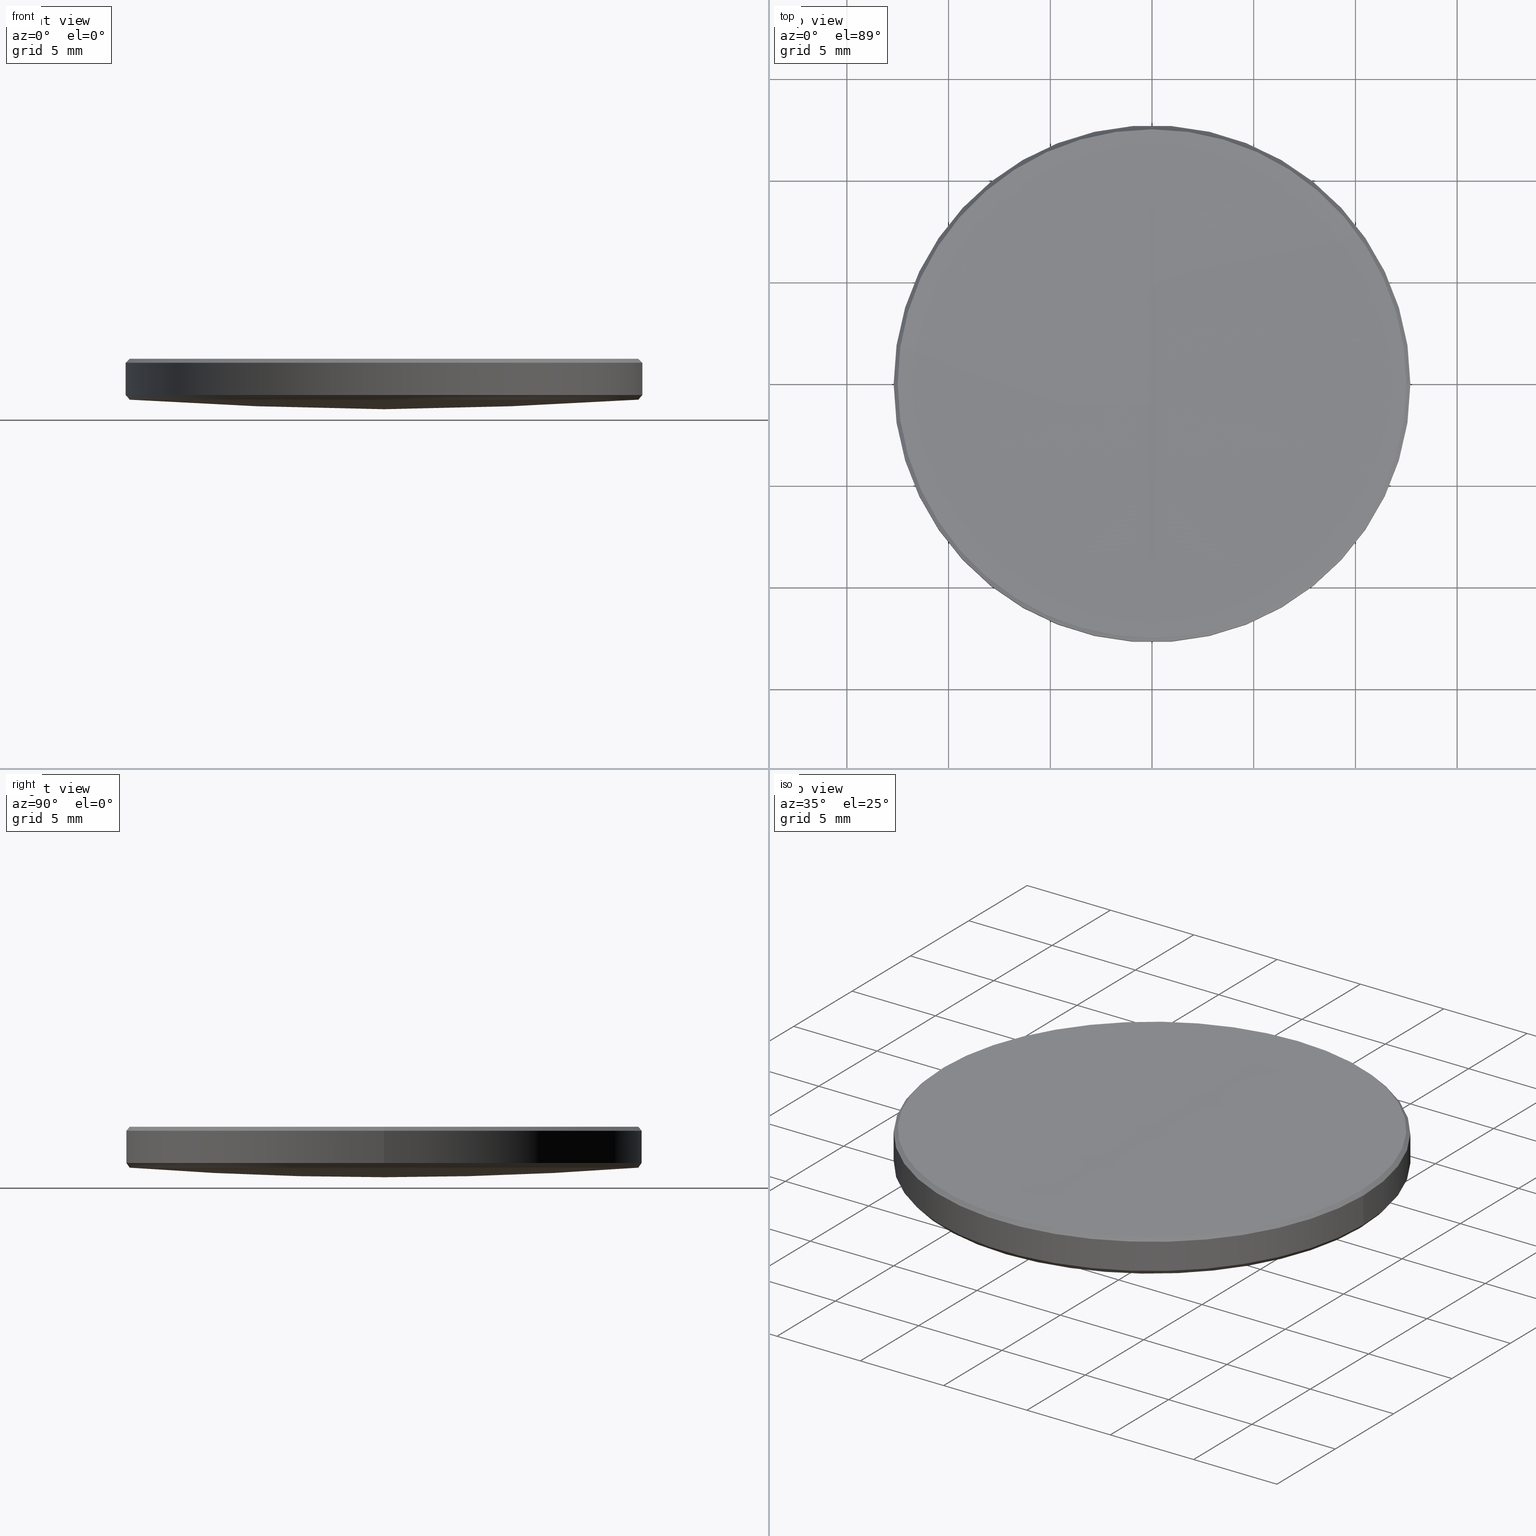
[diagram: canonical four-view strip — front | top / right | iso, engineering-drawing reading convention]
A machine part, canonical four-view strip (front | top / right | iso — engineering-drawing reading convention). The complete STEP part file that produces these views, byte-faithful:
ISO-10303-21;
HEADER;
FILE_DESCRIPTION (( 'STEP AP214' ),
    '1' );
FILE_NAME ('GLM2-025B-500.STEP',
    '2024-08-09T02:47:14',
    ( 'Windows User' ),
    ( 'P R C' ),
    'SwSTEP 2.0',
    'SolidWorks 2022',
    '' );
FILE_SCHEMA (( 'AUTOMOTIVE_DESIGN' ));
ENDSEC;

DATA;
#1 = LINE ( 'NONE', #5, #167 ) ;
#2 = DIRECTION ( 'NONE',  ( -1.000000000000000000, 1.224646799147353207E-16, 0.000000000000000000 ) ) ;
#3 = DIRECTION ( 'NONE',  ( -0.7071067811865506814, 0.000000000000000000, -0.7071067811865443531 ) ) ;
#4 = DIRECTION ( 'NONE',  ( -0.000000000000000000, -0.000000000000000000, -1.000000000000000000 ) ) ;
#5 = CARTESIAN_POINT ( 'NONE',  ( 12.69999999999999929, 0.000000000000000000, 4.217170936316433583 ) ) ;
#6 = AXIS2_PLACEMENT_3D ( 'NONE', #54, #28, #308 ) ;
#7 = ADVANCED_FACE ( 'NONE', ( #298 ), #275, .F. ) ;
#8 = CARTESIAN_POINT ( 'NONE',  ( 0.000000000000000000, 0.000000000000000000, 10.00000000000000000 ) ) ;
#9 = ADVANCED_FACE ( 'NONE', ( #180 ), #127, .T. ) ;
#10 = AXIS2_PLACEMENT_3D ( 'NONE', #274, #229, #332 ) ;
#11 =( LENGTH_UNIT ( ) NAMED_UNIT ( * ) SI_UNIT ( .MILLI., .METRE. ) );
#12 = CYLINDRICAL_SURFACE ( 'NONE', #14, 12.69999999999999929 ) ;
#13 = CIRCLE ( 'NONE', #119, 12.50409250075131062 ) ;
#14 = AXIS2_PLACEMENT_3D ( 'NONE', #8, #291, #68 ) ;
#15 = EDGE_LOOP ( 'NONE', ( #21, #20, #193, #106 ) ) ;
#16 = EDGE_CURVE ( 'NONE', #39, #75, #314, .T. ) ;
#17 = CIRCLE ( 'NONE', #238, 12.50409250075131062 ) ;
#18 = ORIENTED_EDGE ( 'NONE', *, *, #188, .F. ) ;
#19 = DIRECTION ( 'NONE',  ( 1.000000000000000000, 0.000000000000000000, 0.000000000000000000 ) ) ;
#20 = ORIENTED_EDGE ( 'NONE', *, *, #43, .T. ) ;
#21 = ORIENTED_EDGE ( 'NONE', *, *, #280, .T. ) ;
#22 = ORIENTED_EDGE ( 'NONE', *, *, #212, .T. ) ;
#23 = DIRECTION ( 'NONE',  ( -1.000000000000000000, 0.000000000000000000, 0.000000000000000000 ) ) ;
#24 = VERTEX_POINT ( 'NONE', #236 ) ;
#25 = CARTESIAN_POINT ( 'NONE',  ( 0.000000000000000000, 3.694698160687607492E-14, 5.866332001579599442 ) ) ;
#26 = CARTESIAN_POINT ( 'NONE',  ( 12.50069123197759424, 0.000000000000000000, 3.984896188597097932 ) ) ;
#27 = AXIS2_PLACEMENT_3D ( 'NONE', #169, #64, #240 ) ;
#28 = DIRECTION ( 'NONE',  ( 0.000000000000000000, 0.000000000000000000, -1.000000000000000000 ) ) ;
#29 = VECTOR ( 'NONE', #4, 1000.000000000000000 ) ;
#30 = DIRECTION ( 'NONE',  ( 1.000000000000000000, 0.000000000000000000, 0.000000000000000000 ) ) ;
#31 = CARTESIAN_POINT ( 'NONE',  ( 0.000000000000000000, 0.000000000000000000, 170.2656684345869564 ) ) ;
#32 = CARTESIAN_POINT ( 'NONE',  ( 0.000000000000000000, 0.000000000000000000, 3.984896188597097932 ) ) ;
#33 = FILL_AREA_STYLE_COLOUR ( '', #141 ) ;
#34 = CARTESIAN_POINT ( 'NONE',  ( 0.000000000000000000, 0.000000000000000000, 4.217170936316433583 ) ) ;
#35 = PRODUCT_DEFINITION_FORMATION_WITH_SPECIFIED_SOURCE ( '�κ�', '', #70, .NOT_KNOWN. ) ;
#36 = CARTESIAN_POINT ( 'NONE',  ( -12.69999999999999929, 0.000000000000000000, 4.217170936316433583 ) ) ;
#37 = EDGE_CURVE ( 'NONE', #146, #219, #208, .T. ) ;
#38 = FILL_AREA_STYLE ('',( #264 ) ) ;
#39 = VERTEX_POINT ( 'NONE', #179 ) ;
#40 = CIRCLE ( 'NONE', #155, 12.50409250075131062 ) ;
#41 =( GEOMETRIC_REPRESENTATION_CONTEXT ( 3 ) GLOBAL_UNCERTAINTY_ASSIGNED_CONTEXT ( ( #168 ) ) GLOBAL_UNIT_ASSIGNED_CONTEXT ( ( #170, #288, #165 ) ) REPRESENTATION_CONTEXT ( 'NONE', 'WORKASPACE' ) );
#42 = ORIENTED_EDGE ( 'NONE', *, *, #188, .T. ) ;
#43 = EDGE_CURVE ( 'NONE', #147, #129, #53, .T. ) ;
#44 = ORIENTED_EDGE ( 'NONE', *, *, #151, .F. ) ;
#45 = EDGE_LOOP ( 'NONE', ( #18, #48, #125, #83 ) ) ;
#46 = PRODUCT_CONTEXT ( 'NONE', #230, 'mechanical' ) ;
#47 = ORIENTED_EDGE ( 'NONE', *, *, #37, .T. ) ;
#48 = ORIENTED_EDGE ( 'NONE', *, *, #122, .T. ) ;
#49 = DIRECTION ( 'NONE',  ( 0.000000000000000000, 0.000000000000000000, -1.000000000000000000 ) ) ;
#50 = SHAPE_DEFINITION_REPRESENTATION ( #292, #65 ) ;
#51 = VERTEX_POINT ( 'NONE', #77 ) ;
#52 = CARTESIAN_POINT ( 'NONE',  ( 0.000000000000000000, 0.000000000000000000, 609.2563320015796080 ) ) ;
#53 = LINE ( 'NONE', #282, #29 ) ;
#54 = CARTESIAN_POINT ( 'NONE',  ( 0.000000000000000000, 0.000000000000000000, 5.799999999999916334 ) ) ;
#55 = CARTESIAN_POINT ( 'NONE',  ( 0.000000000000000000, 0.000000000000000000, 170.2656684345869564 ) ) ;
#56 = DIRECTION ( 'NONE',  ( 1.000000000000000000, 0.000000000000000000, 0.000000000000000000 ) ) ;
#57 = CLOSED_SHELL ( 'NONE', ( #62, #178, #105, #220, #290, #300, #313, #7, #9, #325 ) ) ;
#58 = CARTESIAN_POINT ( 'NONE',  ( 0.000000000000000000, 0.000000000000000000, 3.984896188597097932 ) ) ;
#59 = DIRECTION ( 'NONE',  ( 0.000000000000000000, 0.000000000000000000, -1.000000000000000000 ) ) ;
#60 =( NAMED_UNIT ( * ) PLANE_ANGLE_UNIT ( ) SI_UNIT ( $, .RADIAN. ) );
#61 = CONICAL_SURFACE ( 'NONE', #326, 12.69999999999999929, 0.7091624202061372895 ) ;
#62 = ADVANCED_FACE ( 'NONE', ( #254 ), #295, .T. ) ;
#63 =( GEOMETRIC_REPRESENTATION_CONTEXT ( 3 ) GLOBAL_UNCERTAINTY_ASSIGNED_CONTEXT ( ( #160 ) ) GLOBAL_UNIT_ASSIGNED_CONTEXT ( ( #11, #190, #270 ) ) REPRESENTATION_CONTEXT ( 'NONE', 'WORKASPACE' ) );
#64 = DIRECTION ( 'NONE',  ( -1.000000000000000000, 0.000000000000000000, 0.000000000000000000 ) ) ;
#65 = ADVANCED_BREP_SHAPE_REPRESENTATION ( 'GLM2-025B-500', ( #243, #174 ), #41 ) ;
#66 = FACE_OUTER_BOUND ( 'NONE', #148, .T. ) ;
#67 = AXIS2_PLACEMENT_3D ( 'NONE', #31, #207, #231 ) ;
#68 = DIRECTION ( 'NONE',  ( -1.000000000000000000, 0.000000000000000000, 0.000000000000000000 ) ) ;
#69 = VECTOR ( 'NONE', #3, 1000.000000000000114 ) ;
#70 = PRODUCT ( 'GLM2-025B-500', 'GLM2-025B-500', '', ( #46 ) ) ;
#71 = EDGE_LOOP ( 'NONE', ( #269, #319, #245, #99, #152 ) ) ;
#72 = EDGE_CURVE ( 'NONE', #219, #129, #120, .T. ) ;
#73 = AXIS2_PLACEMENT_3D ( 'NONE', #87, #49, #149 ) ;
#74 = ORIENTED_EDGE ( 'NONE', *, *, #82, .F. ) ;
#75 = VERTEX_POINT ( 'NONE', #157 ) ;
#76 = EDGE_LOOP ( 'NONE', ( #44, #246, #74, #177, #247 ) ) ;
#77 = CARTESIAN_POINT ( 'NONE',  ( 0.000000000000000000, 12.50069123197775767, 3.984896188597097932 ) ) ;
#78 = EDGE_LOOP ( 'NONE', ( #320, #196, #200, #172, #102 ) ) ;
#79 = SURFACE_SIDE_STYLE ('',( #331 ) ) ;
#80 = CARTESIAN_POINT ( 'NONE',  ( 0.000000000000000000, 0.000000000000000000, 4.217170936316433583 ) ) ;
#81 = STYLED_ITEM ( 'NONE', ( #228 ), #243 ) ;
#82 = EDGE_CURVE ( 'NONE', #98, #39, #145, .T. ) ;
#83 = ORIENTED_EDGE ( 'NONE', *, *, #108, .T. ) ;
#84 = DIRECTION ( 'NONE',  ( -1.000000000000000000, 0.000000000000000000, 0.000000000000000000 ) ) ;
#85 = DIRECTION ( 'NONE',  ( -0.000000000000000000, -0.000000000000000000, 1.000000000000000000 ) ) ;
#86 = CARTESIAN_POINT ( 'NONE',  ( 0.000000000000000000, 0.000000000000000000, 3.984896188597097932 ) ) ;
#87 = CARTESIAN_POINT ( 'NONE',  ( 0.000000000000000000, 0.000000000000000000, 5.799999999999916334 ) ) ;
#88 = FACE_OUTER_BOUND ( 'NONE', #15, .T. ) ;
#89 = AXIS2_PLACEMENT_3D ( 'NONE', #32, #258, #109 ) ;
#90 = PRESENTATION_LAYER_ASSIGNMENT (  '', '', ( #215 ) ) ;
#91 = PRESENTATION_STYLE_ASSIGNMENT (( #312 ) ) ;
#92 = DIRECTION ( 'NONE',  ( -1.000000000000000000, 0.000000000000000000, 0.000000000000000000 ) ) ;
#93 = ORIENTED_EDGE ( 'NONE', *, *, #43, .F. ) ;
#94 = PRODUCT_RELATED_PRODUCT_CATEGORY ( 'part', '', ( #70 ) ) ;
#95 = PRESENTATION_LAYER_ASSIGNMENT (  '', '', ( #81 ) ) ;
#96 = ORIENTED_EDGE ( 'NONE', *, *, #133, .T. ) ;
#97 = VECTOR ( 'NONE', #234, 1000.000000000000000 ) ;
#98 = VERTEX_POINT ( 'NONE', #26 ) ;
#99 = ORIENTED_EDGE ( 'NONE', *, *, #253, .F. ) ;
#100 = APPLICATION_PROTOCOL_DEFINITION ( 'draft international standard', 'automotive_design', 1998, #230 ) ;
#101 = CIRCLE ( 'NONE', #214, 166.7500000000000000 ) ;
#102 = ORIENTED_EDGE ( 'NONE', *, *, #133, .F. ) ;
#103 = CONICAL_SURFACE ( 'NONE', #226, 12.50409250075130529, 0.7853981633974528309 ) ;
#104 = SPHERICAL_SURFACE ( 'NONE', #10, 603.3899999999999864 ) ;
#105 = ADVANCED_FACE ( 'NONE', ( #256 ), #104, .F. ) ;
#106 = ORIENTED_EDGE ( 'NONE', *, *, #37, .F. ) ;
#107 = CARTESIAN_POINT ( 'NONE',  ( 0.000000000000000000, 0.000000000000000000, 5.995907499248387396 ) ) ;
#108 = EDGE_CURVE ( 'NONE', #75, #51, #241, .T. ) ;
#109 = DIRECTION ( 'NONE',  ( 1.000000000000000000, 0.000000000000000000, 0.000000000000000000 ) ) ;
#110 = UNCERTAINTY_MEASURE_WITH_UNIT (LENGTH_MEASURE( 1.000000000000000082E-05 ), #163, 'distance_accuracy_value', 'NONE');
#111 = CARTESIAN_POINT ( 'NONE',  ( 0.000000000000000000, 0.000000000000000000, 5.995907499248387396 ) ) ;
#112 = CARTESIAN_POINT ( 'NONE',  ( -12.69999999999999929, 1.555301434917138433E-15, 4.217170936316433583 ) ) ;
#113 = DIRECTION ( 'NONE',  ( 1.000000000000000000, 0.000000000000000000, 0.000000000000000000 ) ) ;
#114 = DIRECTION ( 'NONE',  ( -1.224646799147353207E-16, -1.000000000000000000, 0.000000000000000000 ) ) ;
#115 = CARTESIAN_POINT ( 'NONE',  ( 0.000000000000000000, 0.000000000000000000, 4.217170936316433583 ) ) ;
#116 = DIRECTION ( 'NONE',  ( 0.000000000000000000, 0.000000000000000000, -1.000000000000000000 ) ) ;
#117 = CIRCLE ( 'NONE', #6, 12.69999999999999929 ) ;
#118 = CYLINDRICAL_SURFACE ( 'NONE', #164, 12.69999999999999929 ) ;
#119 = AXIS2_PLACEMENT_3D ( 'NONE', #224, #285, #202 ) ;
#120 = CIRCLE ( 'NONE', #321, 12.69999999999999929 ) ;
#121 = FACE_OUTER_BOUND ( 'NONE', #271, .T. ) ;
#122 = EDGE_CURVE ( 'NONE', #176, #39, #101, .T. ) ;
#123 = ORIENTED_EDGE ( 'NONE', *, *, #131, .F. ) ;
#124 = CIRCLE ( 'NONE', #261, 12.50409250075131062 ) ;
#125 = ORIENTED_EDGE ( 'NONE', *, *, #16, .T. ) ;
#126 = EDGE_LOOP ( 'NONE', ( #328, #195, #265, #227, #242 ) ) ;
#127 = CONICAL_SURFACE ( 'NONE', #135, 12.69999999999999929, 0.7091624202061372895 ) ;
#128 = ORIENTED_EDGE ( 'NONE', *, *, #212, .F. ) ;
#129 = VERTEX_POINT ( 'NONE', #162 ) ;
#130 = DIRECTION ( 'NONE',  ( -0.6511983538683498995, 7.974879796749002511E-17, 0.7589075727116915138 ) ) ;
#131 = EDGE_CURVE ( 'NONE', #222, #191, #267, .T. ) ;
#132 = EDGE_LOOP ( 'NONE', ( #123, #22, #171, #296 ) ) ;
#133 = EDGE_CURVE ( 'NONE', #147, #146, #194, .T. ) ;
#134 = DIRECTION ( 'NONE',  ( -0.000000000000000000, -0.000000000000000000, 1.000000000000000000 ) ) ;
#135 = AXIS2_PLACEMENT_3D ( 'NONE', #34, #85, #232 ) ;
#136 = CARTESIAN_POINT ( 'NONE',  ( 0.000000000000000000, 0.000000000000000000, 3.984896188597097932 ) ) ;
#137 = FACE_OUTER_BOUND ( 'NONE', #71, .T. ) ;
#138 = DIRECTION ( 'NONE',  ( -1.000000000000000000, 1.224646799147353207E-16, 0.000000000000000000 ) ) ;
#139 = FILL_AREA_STYLE ('',( #33 ) ) ;
#140 = DIRECTION ( 'NONE',  ( 0.000000000000000000, 1.000000000000000000, 0.000000000000000000 ) ) ;
#141 = COLOUR_RGB ( '',1.000000000000000000, 1.000000000000000000, 1.000000000000000000 ) ;
#142 = SURFACE_STYLE_FILL_AREA ( #38 ) ;
#143 = AXIS2_PLACEMENT_3D ( 'NONE', #182, #186, #140 ) ;
#144 = ORIENTED_EDGE ( 'NONE', *, *, #244, .T. ) ;
#145 = CIRCLE ( 'NONE', #173, 12.50069123197759424 ) ;
#146 = VERTEX_POINT ( 'NONE', #307 ) ;
#147 = VERTEX_POINT ( 'NONE', #301 ) ;
#148 = EDGE_LOOP ( 'NONE', ( #93, #96, #47, #273 ) ) ;
#149 = DIRECTION ( 'NONE',  ( 1.000000000000000000, 0.000000000000000000, 0.000000000000000000 ) ) ;
#150 = AXIS2_PLACEMENT_3D ( 'NONE', #115, #211, #84 ) ;
#151 = EDGE_CURVE ( 'NONE', #75, #219, #154, .T. ) ;
#152 = ORIENTED_EDGE ( 'NONE', *, *, #217, .F. ) ;
#153 = LINE ( 'NONE', #156, #205 ) ;
#154 = LINE ( 'NONE', #112, #252 ) ;
#155 = AXIS2_PLACEMENT_3D ( 'NONE', #111, #284, #260 ) ;
#156 = CARTESIAN_POINT ( 'NONE',  ( 12.50409250075130529, 1.531309685728750775E-15, 5.995907499248609440 ) ) ;
#157 = CARTESIAN_POINT ( 'NONE',  ( -12.50069123197759424, 1.543097292677106632E-15, 3.984896188597097932 ) ) ;
#158 = DIRECTION ( 'NONE',  ( 0.000000000000000000, 0.000000000000000000, -1.000000000000000000 ) ) ;
#159 = DIRECTION ( 'NONE',  ( 0.000000000000000000, 0.000000000000000000, -1.000000000000000000 ) ) ;
#160 = UNCERTAINTY_MEASURE_WITH_UNIT (LENGTH_MEASURE( 1.000000000000000082E-05 ), #11, 'distance_accuracy_value', 'NONE');
#161 = DIRECTION ( 'NONE',  ( 1.000000000000000000, 0.000000000000000000, 0.000000000000000000 ) ) ;
#162 = CARTESIAN_POINT ( 'NONE',  ( 12.69999999999999929, 1.555301434917138433E-15, 4.217170936316433583 ) ) ;
#163 =( LENGTH_UNIT ( ) NAMED_UNIT ( * ) SI_UNIT ( .MILLI., .METRE. ) );
#164 = AXIS2_PLACEMENT_3D ( 'NONE', #189, #315, #289 ) ;
#165 =( NAMED_UNIT ( * ) SI_UNIT ( $, .STERADIAN. ) SOLID_ANGLE_UNIT ( ) );
#166 = EDGE_CURVE ( 'NONE', #198, #191, #13, .T. ) ;
#167 = VECTOR ( 'NONE', #209, 1000.000000000000000 ) ;
#168 = UNCERTAINTY_MEASURE_WITH_UNIT (LENGTH_MEASURE( 1.000000000000000082E-05 ), #170, 'distance_accuracy_value', 'NONE');
#169 = CARTESIAN_POINT ( 'NONE',  ( 0.000000000000000000, 0.000000000000000000, 170.2656684345869564 ) ) ;
#170 =( LENGTH_UNIT ( ) NAMED_UNIT ( * ) SI_UNIT ( .MILLI., .METRE. ) );
#171 = ORIENTED_EDGE ( 'NONE', *, *, #206, .T. ) ;
#172 = ORIENTED_EDGE ( 'NONE', *, *, #266, .T. ) ;
#173 = AXIS2_PLACEMENT_3D ( 'NONE', #58, #116, #30 ) ;
#174 = AXIS2_PLACEMENT_3D ( 'NONE', #272, #324, #19 ) ;
#175 = AXIS2_PLACEMENT_3D ( 'NONE', #86, #184, #210 ) ;
#176 = VERTEX_POINT ( 'NONE', #251 ) ;
#177 = ORIENTED_EDGE ( 'NONE', *, *, #253, .T. ) ;
#178 = ADVANCED_FACE ( 'NONE', ( #137 ), #61, .T. ) ;
#179 = CARTESIAN_POINT ( 'NONE',  ( -1.530893150437094356E-15, -12.50069123197775767, 3.984896188597097932 ) ) ;
#180 = FACE_OUTER_BOUND ( 'NONE', #76, .T. ) ;
#181 = PRODUCT_DEFINITION_CONTEXT ( 'detailed design', #197, 'design' ) ;
#182 = CARTESIAN_POINT ( 'NONE',  ( 0.000000000000000000, 0.000000000000000000, 609.2563320015796080 ) ) ;
#183 = CARTESIAN_POINT ( 'NONE',  ( 0.000000000000000000, 0.000000000000000000, 609.2563320015796080 ) ) ;
#184 = DIRECTION ( 'NONE',  ( 0.000000000000000000, 0.000000000000000000, -1.000000000000000000 ) ) ;
#185 = CARTESIAN_POINT ( 'NONE',  ( -12.50409250075131062, 0.000000000000000000, 5.995907499248387396 ) ) ;
#186 = DIRECTION ( 'NONE',  ( -1.000000000000000000, 0.000000000000000000, 0.000000000000000000 ) ) ;
#187 = AXIS2_PLACEMENT_3D ( 'NONE', #304, #201, #158 ) ;
#188 = EDGE_CURVE ( 'NONE', #176, #51, #310, .T. ) ;
#189 = CARTESIAN_POINT ( 'NONE',  ( 0.000000000000000000, 0.000000000000000000, 10.00000000000000000 ) ) ;
#190 =( NAMED_UNIT ( * ) PLANE_ANGLE_UNIT ( ) SI_UNIT ( $, .RADIAN. ) );
#191 = VERTEX_POINT ( 'NONE', #306 ) ;
#192 =( GEOMETRIC_REPRESENTATION_CONTEXT ( 3 ) GLOBAL_UNCERTAINTY_ASSIGNED_CONTEXT ( ( #110 ) ) GLOBAL_UNIT_ASSIGNED_CONTEXT ( ( #163, #60, #237 ) ) REPRESENTATION_CONTEXT ( 'NONE', 'WORKASPACE' ) );
#193 = ORIENTED_EDGE ( 'NONE', *, *, #279, .T. ) ;
#194 = CIRCLE ( 'NONE', #73, 12.69999999999999929 ) ;
#195 = ORIENTED_EDGE ( 'NONE', *, *, #218, .T. ) ;
#196 = ORIENTED_EDGE ( 'NONE', *, *, #263, .F. ) ;
#197 = APPLICATION_CONTEXT ( 'automotive_design' ) ;
#198 = VERTEX_POINT ( 'NONE', #185 ) ;
#199 = AXIS2_PLACEMENT_3D ( 'NONE', #52, #56, #59 ) ;
#200 = ORIENTED_EDGE ( 'NONE', *, *, #166, .F. ) ;
#201 = DIRECTION ( 'NONE',  ( 1.000000000000000000, -0.000000000000000000, 0.000000000000000000 ) ) ;
#202 = DIRECTION ( 'NONE',  ( 1.000000000000000000, 0.000000000000000000, 0.000000000000000000 ) ) ;
#203 = DIRECTION ( 'NONE',  ( -0.000000000000000000, -0.000000000000000000, 1.000000000000000000 ) ) ;
#204 = DIRECTION ( 'NONE',  ( 1.000000000000000000, 0.000000000000000000, 0.000000000000000000 ) ) ;
#205 = VECTOR ( 'NONE', #250, 1000.000000000000114 ) ;
#206 = EDGE_CURVE ( 'NONE', #293, #198, #40, .T. ) ;
#207 = DIRECTION ( 'NONE',  ( -1.000000000000000000, 0.000000000000000000, 0.000000000000000000 ) ) ;
#208 = LINE ( 'NONE', #278, #97 ) ;
#209 = DIRECTION ( 'NONE',  ( 0.6511983538683498995, 0.000000000000000000, 0.7589075727116915138 ) ) ;
#210 = DIRECTION ( 'NONE',  ( 1.000000000000000000, 0.000000000000000000, 0.000000000000000000 ) ) ;
#211 = DIRECTION ( 'NONE',  ( -0.000000000000000000, -0.000000000000000000, 1.000000000000000000 ) ) ;
#212 = EDGE_CURVE ( 'NONE', #222, #293, #225, .T. ) ;
#213 = CARTESIAN_POINT ( 'NONE',  ( 0.000000000000000000, 12.50409250074720546, 5.995907499248387396 ) ) ;
#214 = AXIS2_PLACEMENT_3D ( 'NONE', #55, #138, #305 ) ;
#215 = STYLED_ITEM ( 'NONE', ( #91 ), #65 ) ;
#216 = CARTESIAN_POINT ( 'NONE',  ( 0.000000000000000000, 0.000000000000000000, 5.995907499248609440 ) ) ;
#217 = EDGE_CURVE ( 'NONE', #51, #98, #294, .T. ) ;
#218 = EDGE_CURVE ( 'NONE', #24, #147, #153, .T. ) ;
#219 = VERTEX_POINT ( 'NONE', #36 ) ;
#220 = ADVANCED_FACE ( 'NONE', ( #255 ), #276, .T. ) ;
#221 = ORIENTED_EDGE ( 'NONE', *, *, #217, .T. ) ;
#222 = VERTEX_POINT ( 'NONE', #25 ) ;
#223 = ORIENTED_EDGE ( 'NONE', *, *, #263, .T. ) ;
#224 = CARTESIAN_POINT ( 'NONE',  ( 0.000000000000000000, 0.000000000000000000, 5.995907499248387396 ) ) ;
#225 = CIRCLE ( 'NONE', #199, 603.3899999999999864 ) ;
#226 = AXIS2_PLACEMENT_3D ( 'NONE', #216, #316, #92 ) ;
#227 = ORIENTED_EDGE ( 'NONE', *, *, #266, .F. ) ;
#228 = PRESENTATION_STYLE_ASSIGNMENT (( #286 ) ) ;
#229 = DIRECTION ( 'NONE',  ( -1.000000000000000000, 0.000000000000000000, 0.000000000000000000 ) ) ;
#230 = APPLICATION_CONTEXT ( 'automotive_design' ) ;
#231 = DIRECTION ( 'NONE',  ( 0.000000000000000000, 1.000000000000000000, 0.000000000000000000 ) ) ;
#232 = DIRECTION ( 'NONE',  ( 1.000000000000000000, 0.000000000000000000, 0.000000000000000000 ) ) ;
#233 = DIRECTION ( 'NONE',  ( 1.000000000000000000, 0.000000000000000000, 0.000000000000000000 ) ) ;
#234 = DIRECTION ( 'NONE',  ( -0.000000000000000000, -0.000000000000000000, -1.000000000000000000 ) ) ;
#235 = LINE ( 'NONE', #303, #69 ) ;
#236 = CARTESIAN_POINT ( 'NONE',  ( 12.50409250075131062, 1.543305560322944900E-15, 5.995907499248387396 ) ) ;
#237 =( NAMED_UNIT ( * ) SI_UNIT ( $, .STERADIAN. ) SOLID_ANGLE_UNIT ( ) );
#238 = AXIS2_PLACEMENT_3D ( 'NONE', #107, #203, #113 ) ;
#239 = SURFACE_SIDE_STYLE ('',( #142 ) ) ;
#240 = DIRECTION ( 'NONE',  ( 0.000000000000000000, 1.000000000000000000, 0.000000000000000000 ) ) ;
#241 = CIRCLE ( 'NONE', #89, 12.50069123197759424 ) ;
#242 = ORIENTED_EDGE ( 'NONE', *, *, #206, .F. ) ;
#243 = MANIFOLD_SOLID_BREP ( '����1', #57 ) ;
#244 = EDGE_CURVE ( 'NONE', #24, #293, #124, .T. ) ;
#245 = ORIENTED_EDGE ( 'NONE', *, *, #279, .F. ) ;
#246 = ORIENTED_EDGE ( 'NONE', *, *, #16, .F. ) ;
#247 = ORIENTED_EDGE ( 'NONE', *, *, #72, .F. ) ;
#248 = CIRCLE ( 'NONE', #150, 12.69999999999999929 ) ;
#249 = CARTESIAN_POINT ( 'NONE',  ( 0.000000000000000000, 0.000000000000000000, 5.995907499248609440 ) ) ;
#250 = DIRECTION ( 'NONE',  ( 0.7071067811865506814, 8.659560562354969836E-17, -0.7071067811865443531 ) ) ;
#251 = CARTESIAN_POINT ( 'NONE',  ( 0.000000000000000000, 1.021049268789105718E-14, 3.515668434586949331 ) ) ;
#252 = VECTOR ( 'NONE', #130, 1000.000000000000000 ) ;
#253 = EDGE_CURVE ( 'NONE', #98, #129, #1, .T. ) ;
#254 = FACE_OUTER_BOUND ( 'NONE', #126, .T. ) ;
#255 = FACE_OUTER_BOUND ( 'NONE', #45, .T. ) ;
#256 = FACE_OUTER_BOUND ( 'NONE', #317, .T. ) ;
#257 = CARTESIAN_POINT ( 'NONE',  ( 0.000000000000000000, 0.000000000000000000, 5.995907499248387396 ) ) ;
#258 = DIRECTION ( 'NONE',  ( 0.000000000000000000, 0.000000000000000000, -1.000000000000000000 ) ) ;
#259 = COLOUR_RGB ( '',1.000000000000000000, 1.000000000000000000, 1.000000000000000000 ) ;
#260 = DIRECTION ( 'NONE',  ( 1.000000000000000000, 0.000000000000000000, 0.000000000000000000 ) ) ;
#261 = AXIS2_PLACEMENT_3D ( 'NONE', #257, #329, #233 ) ;
#262 = FACE_OUTER_BOUND ( 'NONE', #78, .T. ) ;
#263 = EDGE_CURVE ( 'NONE', #191, #24, #17, .T. ) ;
#264 = FILL_AREA_STYLE_COLOUR ( '', #259 ) ;
#265 = ORIENTED_EDGE ( 'NONE', *, *, #280, .F. ) ;
#266 = EDGE_CURVE ( 'NONE', #198, #146, #235, .T. ) ;
#267 = CIRCLE ( 'NONE', #287, 603.3899999999999864 ) ;
#268 = MECHANICAL_DESIGN_GEOMETRIC_PRESENTATION_REPRESENTATION (  '', ( #215 ), #63 ) ;
#269 = ORIENTED_EDGE ( 'NONE', *, *, #108, .F. ) ;
#270 =( NAMED_UNIT ( * ) SI_UNIT ( $, .STERADIAN. ) SOLID_ANGLE_UNIT ( ) );
#271 = EDGE_LOOP ( 'NONE', ( #302, #42, #221, #297 ) ) ;
#272 = CARTESIAN_POINT ( 'NONE',  ( 0.000000000000000000, 0.000000000000000000, 0.000000000000000000 ) ) ;
#273 = ORIENTED_EDGE ( 'NONE', *, *, #72, .T. ) ;
#274 = CARTESIAN_POINT ( 'NONE',  ( 0.000000000000000000, 0.000000000000000000, 609.2563320015796080 ) ) ;
#275 = SPHERICAL_SURFACE ( 'NONE', #143, 603.3899999999999864 ) ;
#276 = SPHERICAL_SURFACE ( 'NONE', #67, 166.7500000000000000 ) ;
#277 = AXIS2_PLACEMENT_3D ( 'NONE', #136, #299, #161 ) ;
#278 = CARTESIAN_POINT ( 'NONE',  ( -12.69999999999999929, 0.000000000000000000, 10.00000000000000000 ) ) ;
#279 = EDGE_CURVE ( 'NONE', #129, #219, #248, .T. ) ;
#280 = EDGE_CURVE ( 'NONE', #146, #147, #117, .T. ) ;
#281 = DIRECTION ( 'NONE',  ( -1.000000000000000000, 0.000000000000000000, 0.000000000000000000 ) ) ;
#282 = CARTESIAN_POINT ( 'NONE',  ( 12.69999999999999929, 1.555301434917138433E-15, 10.00000000000000000 ) ) ;
#283 = AXIS2_PLACEMENT_3D ( 'NONE', #249, #159, #23 ) ;
#284 = DIRECTION ( 'NONE',  ( -0.000000000000000000, -0.000000000000000000, 1.000000000000000000 ) ) ;
#285 = DIRECTION ( 'NONE',  ( -0.000000000000000000, -0.000000000000000000, 1.000000000000000000 ) ) ;
#286 = SURFACE_STYLE_USAGE ( .BOTH. , #79 ) ;
#287 = AXIS2_PLACEMENT_3D ( 'NONE', #183, #2, #114 ) ;
#288 =( NAMED_UNIT ( * ) PLANE_ANGLE_UNIT ( ) SI_UNIT ( $, .RADIAN. ) );
#289 = DIRECTION ( 'NONE',  ( -1.000000000000000000, 0.000000000000000000, 0.000000000000000000 ) ) ;
#290 = ADVANCED_FACE ( 'NONE', ( #88 ), #118, .T. ) ;
#291 = DIRECTION ( 'NONE',  ( -0.000000000000000000, -0.000000000000000000, -1.000000000000000000 ) ) ;
#292 = PRODUCT_DEFINITION_SHAPE ( 'NONE', 'NONE',  #311 ) ;
#293 = VERTEX_POINT ( 'NONE', #213 ) ;
#294 = CIRCLE ( 'NONE', #277, 12.50069123197759424 ) ;
#295 = CONICAL_SURFACE ( 'NONE', #283, 12.50409250075130529, 0.7853981633974528309 ) ;
#296 = ORIENTED_EDGE ( 'NONE', *, *, #166, .T. ) ;
#297 = ORIENTED_EDGE ( 'NONE', *, *, #82, .T. ) ;
#298 = FACE_OUTER_BOUND ( 'NONE', #132, .T. ) ;
#299 = DIRECTION ( 'NONE',  ( 0.000000000000000000, 0.000000000000000000, -1.000000000000000000 ) ) ;
#300 = ADVANCED_FACE ( 'NONE', ( #66 ), #12, .T. ) ;
#301 = CARTESIAN_POINT ( 'NONE',  ( 12.69999999999999929, 1.555301434917138433E-15, 5.799999999999916334 ) ) ;
#302 = ORIENTED_EDGE ( 'NONE', *, *, #122, .F. ) ;
#303 = CARTESIAN_POINT ( 'NONE',  ( -12.50409250075130529, 0.000000000000000000, 5.995907499248609440 ) ) ;
#304 = CARTESIAN_POINT ( 'NONE',  ( 0.000000000000000000, 0.000000000000000000, 170.2656684345869564 ) ) ;
#305 = DIRECTION ( 'NONE',  ( -1.224646799147353207E-16, -1.000000000000000000, 0.000000000000000000 ) ) ;
#306 = CARTESIAN_POINT ( 'NONE',  ( -1.531309685728248665E-15, -12.50409250074720546, 5.995907499248387396 ) ) ;
#307 = CARTESIAN_POINT ( 'NONE',  ( -12.69999999999999929, 0.000000000000000000, 5.799999999999916334 ) ) ;
#308 = DIRECTION ( 'NONE',  ( 1.000000000000000000, 0.000000000000000000, 0.000000000000000000 ) ) ;
#309 = SPHERICAL_SURFACE ( 'NONE', #27, 166.7500000000000000 ) ;
#310 = CIRCLE ( 'NONE', #187, 166.7500000000000000 ) ;
#311 = PRODUCT_DEFINITION ( 'δ֪', '', #35, #181 ) ;
#312 = SURFACE_STYLE_USAGE ( .BOTH. , #239 ) ;
#313 = ADVANCED_FACE ( 'NONE', ( #121 ), #309, .T. ) ;
#314 = CIRCLE ( 'NONE', #175, 12.50069123197759424 ) ;
#315 = DIRECTION ( 'NONE',  ( -0.000000000000000000, -0.000000000000000000, -1.000000000000000000 ) ) ;
#316 = DIRECTION ( 'NONE',  ( 0.000000000000000000, 0.000000000000000000, -1.000000000000000000 ) ) ;
#317 = EDGE_LOOP ( 'NONE', ( #128, #323, #223, #144 ) ) ;
#318 = MECHANICAL_DESIGN_GEOMETRIC_PRESENTATION_REPRESENTATION (  '', ( #81 ), #192 ) ;
#319 = ORIENTED_EDGE ( 'NONE', *, *, #151, .T. ) ;
#320 = ORIENTED_EDGE ( 'NONE', *, *, #218, .F. ) ;
#321 = AXIS2_PLACEMENT_3D ( 'NONE', #330, #327, #281 ) ;
#322 = APPLICATION_PROTOCOL_DEFINITION ( 'draft international standard', 'automotive_design', 1998, #197 ) ;
#323 = ORIENTED_EDGE ( 'NONE', *, *, #131, .T. ) ;
#324 = DIRECTION ( 'NONE',  ( 0.000000000000000000, 0.000000000000000000, 1.000000000000000000 ) ) ;
#325 = ADVANCED_FACE ( 'NONE', ( #262 ), #103, .T. ) ;
#326 = AXIS2_PLACEMENT_3D ( 'NONE', #80, #134, #204 ) ;
#327 = DIRECTION ( 'NONE',  ( -0.000000000000000000, -0.000000000000000000, 1.000000000000000000 ) ) ;
#328 = ORIENTED_EDGE ( 'NONE', *, *, #244, .F. ) ;
#329 = DIRECTION ( 'NONE',  ( -0.000000000000000000, -0.000000000000000000, 1.000000000000000000 ) ) ;
#330 = CARTESIAN_POINT ( 'NONE',  ( 0.000000000000000000, 0.000000000000000000, 4.217170936316433583 ) ) ;
#331 = SURFACE_STYLE_FILL_AREA ( #139 ) ;
#332 = DIRECTION ( 'NONE',  ( 0.000000000000000000, 1.000000000000000000, 0.000000000000000000 ) ) ;
ENDSEC;
END-ISO-10303-21;
